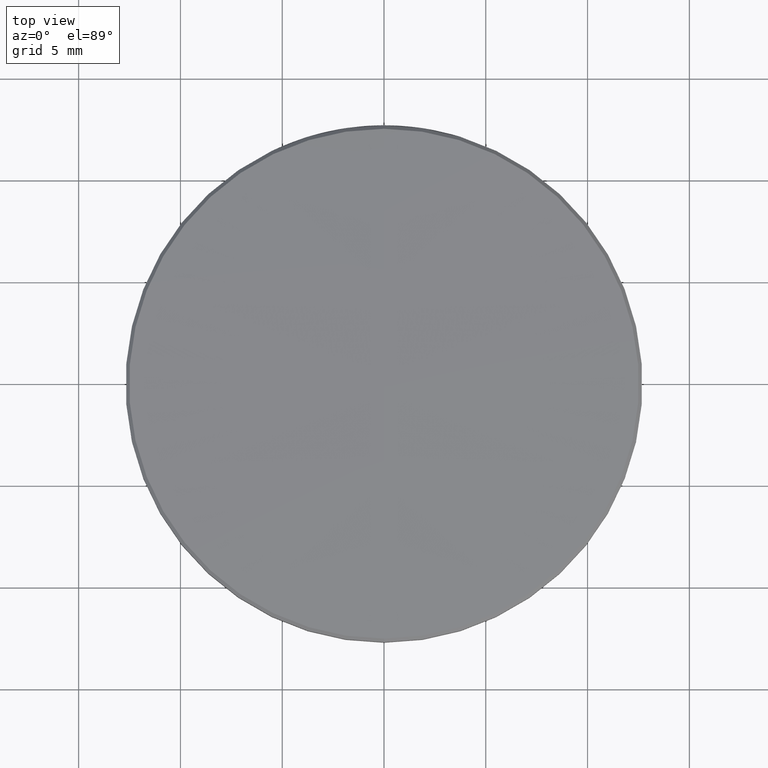
[diagram: clean part render]
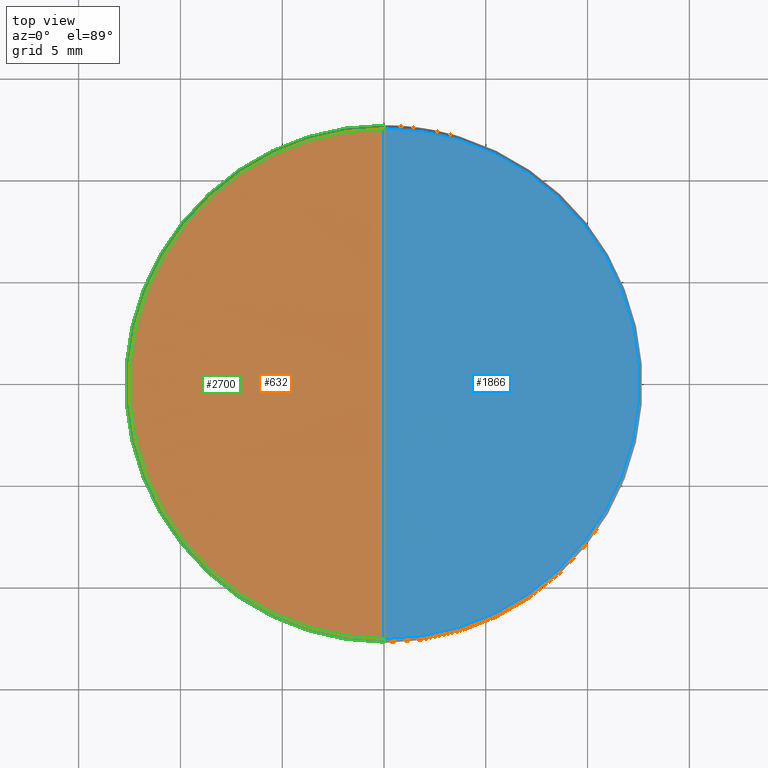
[diagram: same view with three faces highlighted in distinct colors, each labeled with its STEP entity id]
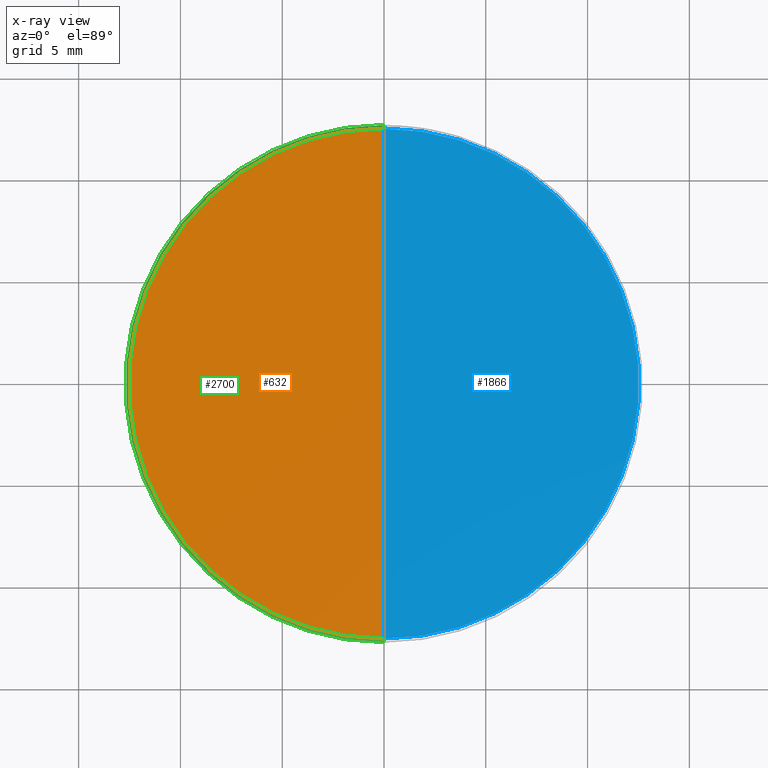
[diagram: x-ray of the same camera — body ghosted, the three highlighted faces saturated]
A machine part, top view with three faces highlighted in distinct colors.
The next image is the same camera in x-ray (body ghosted, the three faces saturated) — at least one of them is partly hidden behind the body in this view.
Their STEP definitions:

[orange] entity #632 — the highlighted spherical surface has radius 1033.6 mm.
#96 = CIRCLE ( 'NONE', #360, 0.4930402875867466728 ) ;
#232 = EDGE_CURVE ( 'NONE', #307, #2565, #336, .T. ) ;
#268 = AXIS2_PLACEMENT_3D ( 'NONE', #2081, #2295, #1871 ) ;
#307 = VERTEX_POINT ( 'NONE', #2035 ) ;
#336 = CIRCLE ( 'NONE', #1452, 40.69291338582677753 ) ;
#360 = AXIS2_PLACEMENT_3D ( 'NONE', #1899, #2120, #852 ) ;
#632 = ADVANCED_FACE ( 'NONE', ( #1576 ), #1777, .T. ) ;
#818 = DIRECTION ( 'NONE',  ( -1.000000000000000000, 0.0000000000000000000, 0.0000000000000000000 ) ) ;
#852 = DIRECTION ( 'NONE',  ( 0.0000000000000000000, -1.000000000000000000, -1.818081900180162967E-16 ) ) ;
#919 = AXIS2_PLACEMENT_3D ( 'NONE', #1605, #818, #1475 ) ;
#1022 = CIRCLE ( 'NONE', #268, 40.69291338582677042 ) ;
#1101 = ORIENTED_EDGE ( 'NONE', *, *, #1753, .T. ) ;
#1191 = CARTESIAN_POINT ( 'NONE',  ( 0.0000000000000000000, 7.232166136693517656E-20, -40.65196850393700601 ) ) ;
#1215 = CARTESIAN_POINT ( 'NONE',  ( 0.0000000000000000000, -4.983372290931955481E-15, 0.04094488188976101728 ) ) ;
#1251 = CARTESIAN_POINT ( 'NONE',  ( -6.038002100438649622E-17, -0.4930402875868074020, 0.03795790421979185203 ) ) ;
#1452 = AXIS2_PLACEMENT_3D ( 'NONE', #1191, #1851, #2251 ) ;
#1475 = DIRECTION ( 'NONE',  ( 0.0000000000000000000, 1.000000000000000000, 2.148264366534746027E-16 ) ) ;
#1576 = FACE_OUTER_BOUND ( 'NONE', #1844, .T. ) ;
#1591 = ORIENTED_EDGE ( 'NONE', *, *, #2631, .T. ) ;
#1605 = CARTESIAN_POINT ( 'NONE',  ( 0.0000000000000000000, 7.232166136693517656E-20, -40.65196850393700601 ) ) ;
#1753 = EDGE_CURVE ( 'NONE', #307, #2091, #96, .T. ) ;
#1777 = SPHERICAL_SURFACE ( 'NONE', #919, 40.69291338582677042 ) ;
#1844 = EDGE_LOOP ( 'NONE', ( #1101, #1591, #2086 ) ) ;
#1851 = DIRECTION ( 'NONE',  ( 1.000000000000000000, 0.0000000000000000000, 0.0000000000000000000 ) ) ;
#1871 = DIRECTION ( 'NONE',  ( -1.224646799147352961E-16, -1.000000000000000000, 0.0000000000000000000 ) ) ;
#1899 = CARTESIAN_POINT ( 'NONE',  ( 0.0000000000000000000, 6.210205577660896999E-19, 0.03795790421978753604 ) ) ;
#2035 = CARTESIAN_POINT ( 'NONE',  ( 0.0000000000000000000, 0.4930402875867999635, 0.03795790421979194224 ) ) ;
#2081 = CARTESIAN_POINT ( 'NONE',  ( 0.0000000000000000000, 7.232166136693517656E-20, -40.65196850393700601 ) ) ;
#2086 = ORIENTED_EDGE ( 'NONE', *, *, #232, .F. ) ;
#2091 = VERTEX_POINT ( 'NONE', #1251 ) ;
#2120 = DIRECTION ( 'NONE',  ( -0.0000000000000000000, -1.836970198721029688E-16, 1.000000000000000000 ) ) ;
#2251 = DIRECTION ( 'NONE',  ( 0.0000000000000000000, 0.0000000000000000000, -1.000000000000000000 ) ) ;
#2295 = DIRECTION ( 'NONE',  ( -1.000000000000000000, 1.224646799147353207E-16, 2.249639673992786412E-32 ) ) ;
#2565 = VERTEX_POINT ( 'NONE', #1215 ) ;
#2631 = EDGE_CURVE ( 'NONE', #2091, #2565, #1022, .T. ) ;

[blue] entity #1866 — the highlighted spherical surface has radius 1033.6 mm.
#44 = DIRECTION ( 'NONE',  ( -1.000000000000000000, 0.0000000000000000000, 0.0000000000000000000 ) ) ;
#163 = DIRECTION ( 'NONE',  ( 0.0000000000000000000, -1.000000000000000000, -1.818081900180162967E-16 ) ) ;
#232 = EDGE_CURVE ( 'NONE', #307, #2565, #336, .T. ) ;
#268 = AXIS2_PLACEMENT_3D ( 'NONE', #2081, #2295, #1871 ) ;
#307 = VERTEX_POINT ( 'NONE', #2035 ) ;
#336 = CIRCLE ( 'NONE', #1452, 40.69291338582677753 ) ;
#517 = DIRECTION ( 'NONE',  ( 0.0000000000000000000, 1.000000000000000000, 2.148264366534746027E-16 ) ) ;
#713 = EDGE_CURVE ( 'NONE', #2091, #307, #1448, .T. ) ;
#1022 = CIRCLE ( 'NONE', #268, 40.69291338582677042 ) ;
#1191 = CARTESIAN_POINT ( 'NONE',  ( 0.0000000000000000000, 7.232166136693517656E-20, -40.65196850393700601 ) ) ;
#1215 = CARTESIAN_POINT ( 'NONE',  ( 0.0000000000000000000, -4.983372290931955481E-15, 0.04094488188976101728 ) ) ;
#1233 = CARTESIAN_POINT ( 'NONE',  ( 0.0000000000000000000, 6.210205577660896999E-19, 0.03795790421978753604 ) ) ;
#1251 = CARTESIAN_POINT ( 'NONE',  ( -6.038002100438649622E-17, -0.4930402875868074020, 0.03795790421979185203 ) ) ;
#1295 = ORIENTED_EDGE ( 'NONE', *, *, #2631, .F. ) ;
#1448 = CIRCLE ( 'NONE', #2680, 0.4930402875867466728 ) ;
#1452 = AXIS2_PLACEMENT_3D ( 'NONE', #1191, #1851, #2251 ) ;
#1467 = DIRECTION ( 'NONE',  ( -0.0000000000000000000, -1.836970198721029688E-16, 1.000000000000000000 ) ) ;
#1775 = AXIS2_PLACEMENT_3D ( 'NONE', #2436, #44, #517 ) ;
#1851 = DIRECTION ( 'NONE',  ( 1.000000000000000000, 0.0000000000000000000, 0.0000000000000000000 ) ) ;
#1866 = ADVANCED_FACE ( 'NONE', ( #2556 ), #2421, .T. ) ;
#1871 = DIRECTION ( 'NONE',  ( -1.224646799147352961E-16, -1.000000000000000000, 0.0000000000000000000 ) ) ;
#1897 = ORIENTED_EDGE ( 'NONE', *, *, #713, .T. ) ;
#2035 = CARTESIAN_POINT ( 'NONE',  ( 0.0000000000000000000, 0.4930402875867999635, 0.03795790421979194224 ) ) ;
#2081 = CARTESIAN_POINT ( 'NONE',  ( 0.0000000000000000000, 7.232166136693517656E-20, -40.65196850393700601 ) ) ;
#2091 = VERTEX_POINT ( 'NONE', #1251 ) ;
#2251 = DIRECTION ( 'NONE',  ( 0.0000000000000000000, 0.0000000000000000000, -1.000000000000000000 ) ) ;
#2295 = DIRECTION ( 'NONE',  ( -1.000000000000000000, 1.224646799147353207E-16, 2.249639673992786412E-32 ) ) ;
#2301 = ORIENTED_EDGE ( 'NONE', *, *, #232, .T. ) ;
#2349 = EDGE_LOOP ( 'NONE', ( #1295, #1897, #2301 ) ) ;
#2421 = SPHERICAL_SURFACE ( 'NONE', #1775, 40.69291338582677042 ) ;
#2436 = CARTESIAN_POINT ( 'NONE',  ( 0.0000000000000000000, 7.232166136693517656E-20, -40.65196850393700601 ) ) ;
#2556 = FACE_OUTER_BOUND ( 'NONE', #2349, .T. ) ;
#2565 = VERTEX_POINT ( 'NONE', #1215 ) ;
#2631 = EDGE_CURVE ( 'NONE', #2091, #2565, #1022, .T. ) ;
#2680 = AXIS2_PLACEMENT_3D ( 'NONE', #1233, #1467, #163 ) ;

[green] entity #2700 — the highlighted conical surface has half-angle 45 deg.
#37 = VERTEX_POINT ( 'NONE', #1216 ) ;
#96 = CIRCLE ( 'NONE', #360, 0.4930402875867466728 ) ;
#141 = VECTOR ( 'NONE', #1733, 39.37007874015748854 ) ;
#155 = ORIENTED_EDGE ( 'NONE', *, *, #401, .T. ) ;
#187 = ORIENTED_EDGE ( 'NONE', *, *, #999, .F. ) ;
#191 = ORIENTED_EDGE ( 'NONE', *, *, #1753, .F. ) ;
#222 = CARTESIAN_POINT ( 'NONE',  ( 6.123233995736766036E-17, -0.5000000000000000000, 0.03099819180653399370 ) ) ;
#296 = CARTESIAN_POINT ( 'NONE',  ( 0.0000000000000000000, 0.5000000000000000000, 0.03099819180653418105 ) ) ;
#305 = LINE ( 'NONE', #296, #654 ) ;
#307 = VERTEX_POINT ( 'NONE', #2035 ) ;
#360 = AXIS2_PLACEMENT_3D ( 'NONE', #1899, #2120, #852 ) ;
#401 = EDGE_CURVE ( 'NONE', #307, #37, #305, .T. ) ;
#403 = DIRECTION ( 'NONE',  ( 0.0000000000000000000, -1.000000000000000000, -1.878145495644180839E-16 ) ) ;
#414 = CARTESIAN_POINT ( 'NONE',  ( 0.0000000000000000000, 1.899498987247631183E-18, 0.03099819180653408737 ) ) ;
#551 = ORIENTED_EDGE ( 'NONE', *, *, #1989, .T. ) ;
#654 = VECTOR ( 'NONE', #2031, 39.37007874015748854 ) ;
#773 = DIRECTION ( 'NONE',  ( 0.0000000000000000000, 1.000000000000000000, 1.878145495644180839E-16 ) ) ;
#852 = DIRECTION ( 'NONE',  ( 0.0000000000000000000, -1.000000000000000000, -1.818081900180162967E-16 ) ) ;
#899 = FACE_OUTER_BOUND ( 'NONE', #1412, .T. ) ;
#999 = EDGE_CURVE ( 'NONE', #2091, #2052, #2496, .T. ) ;
#1216 = CARTESIAN_POINT ( 'NONE',  ( 6.123233995736766036E-17, 0.5000000000000000000, 0.03099819180653418105 ) ) ;
#1238 = DIRECTION ( 'NONE',  ( -0.0000000000000000000, -1.836970198721029688E-16, 1.000000000000000000 ) ) ;
#1251 = CARTESIAN_POINT ( 'NONE',  ( -6.038002100438649622E-17, -0.4930402875868074020, 0.03795790421979185203 ) ) ;
#1316 = AXIS2_PLACEMENT_3D ( 'NONE', #414, #1238, #403 ) ;
#1412 = EDGE_LOOP ( 'NONE', ( #187, #191, #155, #551 ) ) ;
#1733 = DIRECTION ( 'NONE',  ( 8.659560562354855205E-17, -0.7071067811865410224, -0.7071067811865539010 ) ) ;
#1734 = CIRCLE ( 'NONE', #1316, 0.5000000000000000000 ) ;
#1753 = EDGE_CURVE ( 'NONE', #307, #2091, #96, .T. ) ;
#1899 = CARTESIAN_POINT ( 'NONE',  ( 0.0000000000000000000, 6.210205577660896999E-19, 0.03795790421978753604 ) ) ;
#1959 = CONICAL_SURFACE ( 'NONE', #2228, 0.5000000000000000000, 0.7853981633974393972 ) ;
#1989 = EDGE_CURVE ( 'NONE', #37, #2052, #1734, .T. ) ;
#2031 = DIRECTION ( 'NONE',  ( 0.0000000000000000000, 0.7071067811865412445, -0.7071067811865536790 ) ) ;
#2035 = CARTESIAN_POINT ( 'NONE',  ( 0.0000000000000000000, 0.4930402875867999635, 0.03795790421979194224 ) ) ;
#2052 = VERTEX_POINT ( 'NONE', #2740 ) ;
#2091 = VERTEX_POINT ( 'NONE', #1251 ) ;
#2120 = DIRECTION ( 'NONE',  ( -0.0000000000000000000, -1.836970198721029688E-16, 1.000000000000000000 ) ) ;
#2228 = AXIS2_PLACEMENT_3D ( 'NONE', #2259, #2435, #773 ) ;
#2259 = CARTESIAN_POINT ( 'NONE',  ( 0.0000000000000000000, 1.899498987247631183E-18, 0.03099819180653408737 ) ) ;
#2435 = DIRECTION ( 'NONE',  ( 0.0000000000000000000, 1.836970198721029688E-16, -1.000000000000000000 ) ) ;
#2496 = LINE ( 'NONE', #222, #141 ) ;
#2700 = ADVANCED_FACE ( 'NONE', ( #899 ), #1959, .T. ) ;
#2740 = CARTESIAN_POINT ( 'NONE',  ( 0.0000000000000000000, -0.5000000000000000000, 0.03099819180653399370 ) ) ;